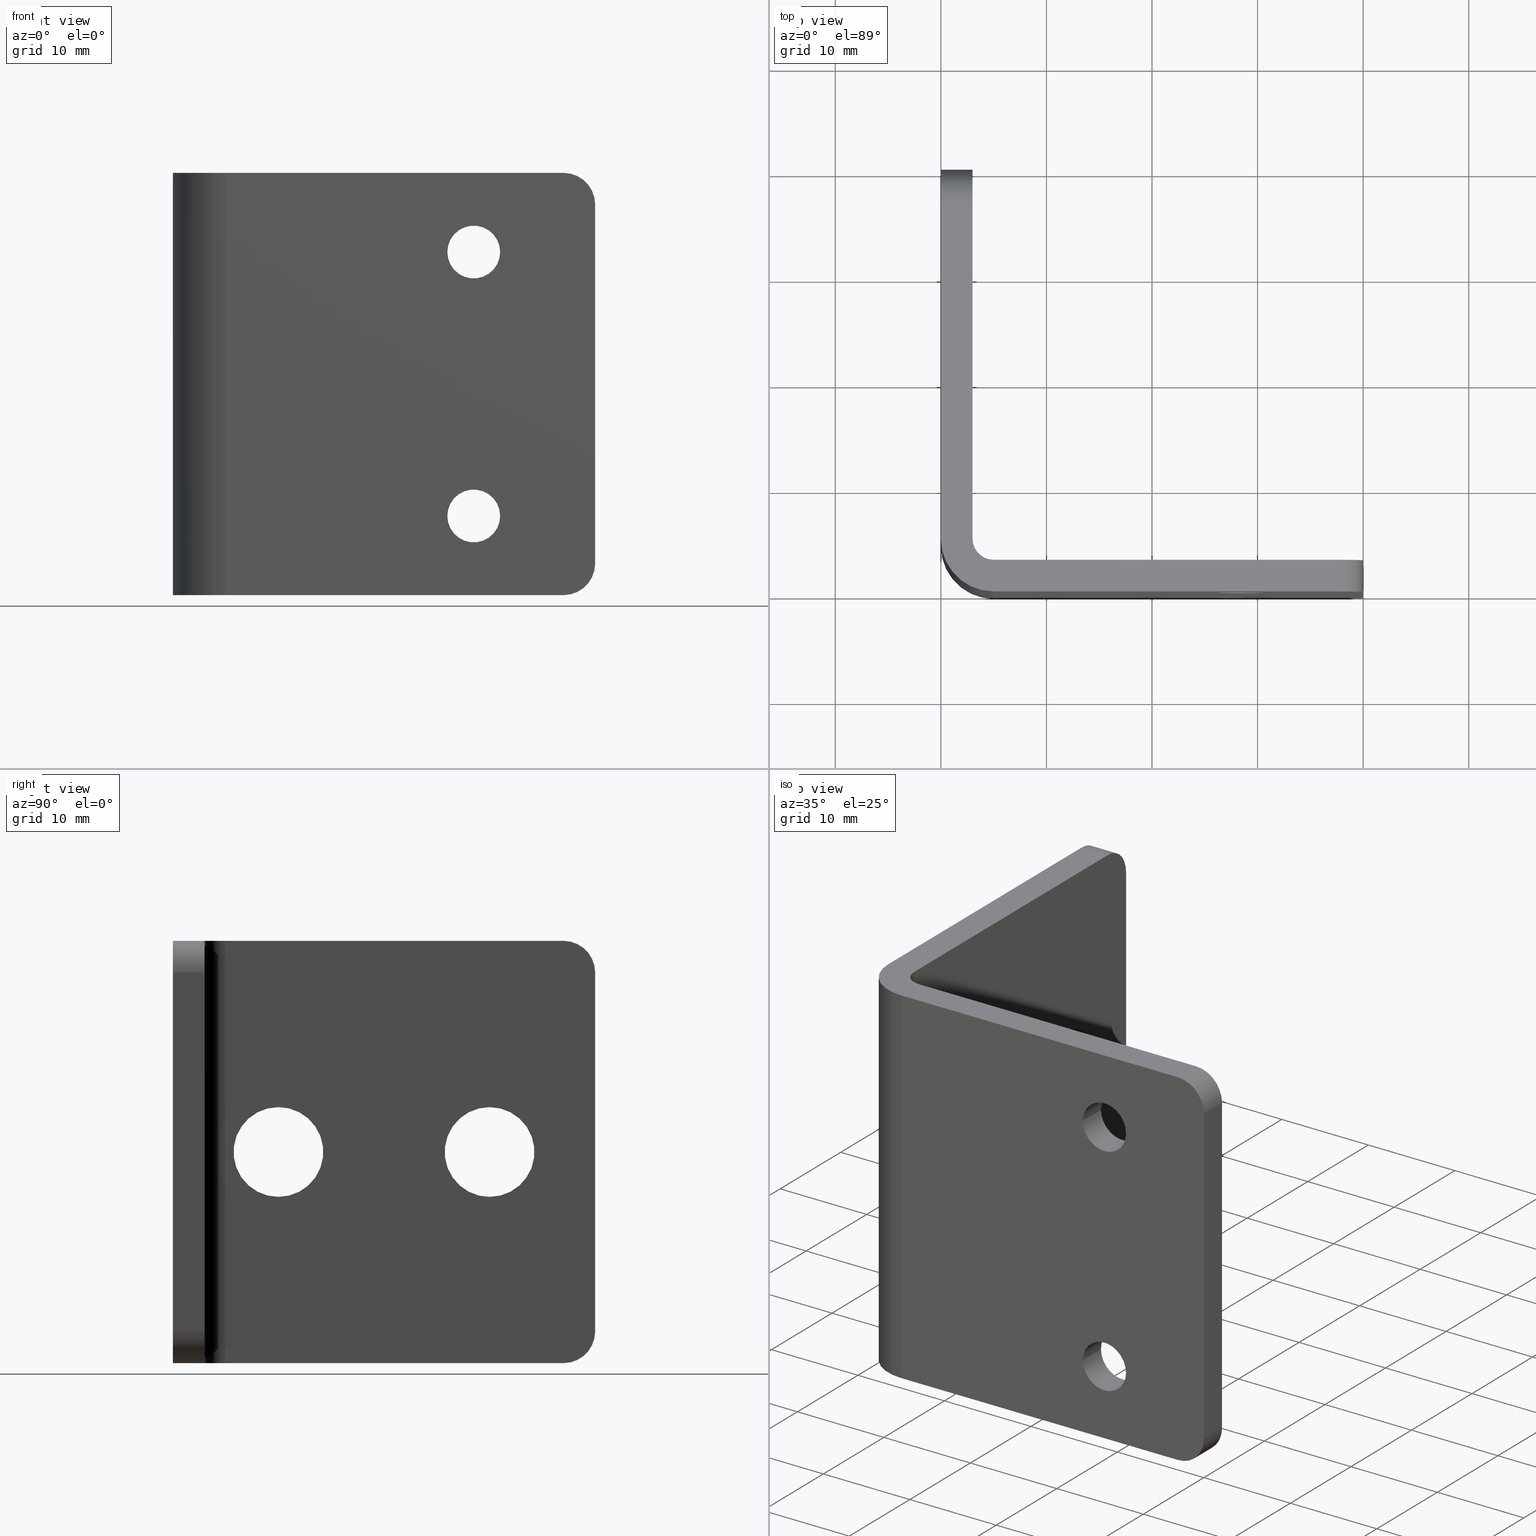
[diagram: canonical four-view strip — front | top / right | iso, engineering-drawing reading convention]
A machine part, canonical four-view strip (front | top / right | iso — engineering-drawing reading convention). The complete STEP part file that produces these views, byte-faithful:
ISO-10303-21;
HEADER;
/* Generated by software containing ST-Developer
 * from STEP Tools, Inc. (www.steptools.com) 
 */

FILE_DESCRIPTION(
/* description */ ('ANGOLARE 40X40X40X3 PER FIX SCORREV.INOX'),
/* implementation_level */ '2;1');

FILE_NAME(
/* name */ 
'C:\\Users\\tecnico7\\Desktop\\NUOVI DISEGNI 3D\\DANXX0000053.stp',
/* time_stamp */ '2022-11-21T11:14:09+01:00',
/* author */ ('tecnico7'),
/* organization */ (''),
/* preprocessor_version */ 'ST-DEVELOPER v18.1',
/* originating_system */ 'Autodesk Inventor 2022',
/* authorisation */ '');

FILE_SCHEMA (('AUTOMOTIVE_DESIGN { 1 0 10303 214 3 1 1 }'));
ENDSEC;

DATA;
#10=MECHANICAL_DESIGN_GEOMETRIC_PRESENTATION_REPRESENTATION('',(#13),#684);
#11=SHAPE_REPRESENTATION_RELATIONSHIP('SRR','None',#691,#12);
#12=ADVANCED_BREP_SHAPE_REPRESENTATION('',(#14),#683);
#13=STYLED_ITEM('',(#700),#14);
#14=MANIFOLD_SOLID_BREP('Solido2',#391);
#15=FACE_BOUND('',#60,.T.);
#16=FACE_BOUND('',#61,.T.);
#17=FACE_BOUND('',#67,.T.);
#18=FACE_BOUND('',#68,.T.);
#19=FACE_BOUND('',#80,.T.);
#20=FACE_BOUND('',#81,.T.);
#21=FACE_BOUND('',#85,.T.);
#22=FACE_BOUND('',#86,.T.);
#23=PLANE('',#417);
#24=PLANE('',#418);
#25=PLANE('',#424);
#26=PLANE('',#428);
#27=PLANE('',#429);
#28=PLANE('',#435);
#29=PLANE('',#447);
#30=PLANE('',#449);
#31=PLANE('',#451);
#32=PLANE('',#452);
#33=PLANE('',#454);
#34=PLANE('',#455);
#35=FACE_OUTER_BOUND('',#57,.T.);
#36=FACE_OUTER_BOUND('',#58,.T.);
#37=FACE_OUTER_BOUND('',#59,.T.);
#38=FACE_OUTER_BOUND('',#62,.T.);
#39=FACE_OUTER_BOUND('',#63,.T.);
#40=FACE_OUTER_BOUND('',#64,.T.);
#41=FACE_OUTER_BOUND('',#65,.T.);
#42=FACE_OUTER_BOUND('',#66,.T.);
#43=FACE_OUTER_BOUND('',#69,.T.);
#44=FACE_OUTER_BOUND('',#70,.T.);
#45=FACE_OUTER_BOUND('',#71,.T.);
#46=FACE_OUTER_BOUND('',#72,.T.);
#47=FACE_OUTER_BOUND('',#73,.T.);
#48=FACE_OUTER_BOUND('',#74,.T.);
#49=FACE_OUTER_BOUND('',#75,.T.);
#50=FACE_OUTER_BOUND('',#76,.T.);
#51=FACE_OUTER_BOUND('',#77,.T.);
#52=FACE_OUTER_BOUND('',#78,.T.);
#53=FACE_OUTER_BOUND('',#79,.T.);
#54=FACE_OUTER_BOUND('',#82,.T.);
#55=FACE_OUTER_BOUND('',#83,.T.);
#56=FACE_OUTER_BOUND('',#84,.T.);
#57=EDGE_LOOP('',(#255,#256,#257,#258));
#58=EDGE_LOOP('',(#259,#260,#261,#262));
#59=EDGE_LOOP('',(#263,#264,#265,#266,#267,#268));
#60=EDGE_LOOP('',(#269));
#61=EDGE_LOOP('',(#270));
#62=EDGE_LOOP('',(#271,#272,#273,#274));
#63=EDGE_LOOP('',(#275,#276,#277,#278));
#64=EDGE_LOOP('',(#279,#280,#281,#282));
#65=EDGE_LOOP('',(#283,#284,#285,#286));
#66=EDGE_LOOP('',(#287,#288,#289,#290,#291,#292));
#67=EDGE_LOOP('',(#293));
#68=EDGE_LOOP('',(#294));
#69=EDGE_LOOP('',(#295,#296,#297,#298));
#70=EDGE_LOOP('',(#299,#300,#301,#302));
#71=EDGE_LOOP('',(#303,#304,#305,#306));
#72=EDGE_LOOP('',(#307,#308,#309,#310));
#73=EDGE_LOOP('',(#311,#312,#313,#314));
#74=EDGE_LOOP('',(#315,#316,#317,#318));
#75=EDGE_LOOP('',(#319,#320,#321,#322));
#76=EDGE_LOOP('',(#323,#324,#325,#326));
#77=EDGE_LOOP('',(#327,#328,#329,#330));
#78=EDGE_LOOP('',(#331,#332,#333,#334));
#79=EDGE_LOOP('',(#335,#336,#337,#338,#339,#340));
#80=EDGE_LOOP('',(#341));
#81=EDGE_LOOP('',(#342));
#82=EDGE_LOOP('',(#343,#344,#345,#346));
#83=EDGE_LOOP('',(#347,#348,#349,#350));
#84=EDGE_LOOP('',(#351,#352,#353,#354,#355,#356));
#85=EDGE_LOOP('',(#357));
#86=EDGE_LOOP('',(#358));
#87=LINE('',#580,#119);
#88=LINE('',#583,#120);
#89=LINE('',#586,#121);
#90=LINE('',#588,#122);
#91=LINE('',#589,#123);
#92=LINE('',#592,#124);
#93=LINE('',#596,#125);
#94=LINE('',#597,#126);
#95=LINE('',#606,#127);
#96=LINE('',#607,#128);
#97=LINE('',#610,#129);
#98=LINE('',#611,#130);
#99=LINE('',#617,#131);
#100=LINE('',#620,#132);
#101=LINE('',#623,#133);
#102=LINE('',#625,#134);
#103=LINE('',#626,#135);
#104=LINE('',#629,#136);
#105=LINE('',#633,#137);
#106=LINE('',#634,#138);
#107=LINE('',#643,#139);
#108=LINE('',#644,#140);
#109=LINE('',#647,#141);
#110=LINE('',#648,#142);
#111=LINE('',#651,#143);
#112=LINE('',#655,#144);
#113=LINE('',#660,#145);
#114=LINE('',#664,#146);
#115=LINE('',#666,#147);
#116=LINE('',#674,#148);
#117=LINE('',#677,#149);
#118=LINE('',#679,#150);
#119=VECTOR('',#462,10.);
#120=VECTOR('',#465,10.);
#121=VECTOR('',#468,10.);
#122=VECTOR('',#469,10.);
#123=VECTOR('',#470,10.);
#124=VECTOR('',#473,10.);
#125=VECTOR('',#476,10.);
#126=VECTOR('',#477,10.);
#127=VECTOR('',#486,10.);
#128=VECTOR('',#487,10.);
#129=VECTOR('',#490,10.);
#130=VECTOR('',#491,10.);
#131=VECTOR('',#496,10.);
#132=VECTOR('',#499,10.);
#133=VECTOR('',#502,10.);
#134=VECTOR('',#503,10.);
#135=VECTOR('',#504,10.);
#136=VECTOR('',#507,10.);
#137=VECTOR('',#510,10.);
#138=VECTOR('',#511,10.);
#139=VECTOR('',#520,10.);
#140=VECTOR('',#521,10.);
#141=VECTOR('',#524,10.);
#142=VECTOR('',#525,10.);
#143=VECTOR('',#528,4.25);
#144=VECTOR('',#533,4.25);
#145=VECTOR('',#540,2.5);
#146=VECTOR('',#545,2.5);
#147=VECTOR('',#548,10.);
#148=VECTOR('',#563,10.);
#149=VECTOR('',#568,10.);
#150=VECTOR('',#571,10.);
#151=CIRCLE('',#415,3.);
#152=CIRCLE('',#416,3.);
#153=CIRCLE('',#419,3.);
#154=CIRCLE('',#420,2.5);
#155=CIRCLE('',#421,2.5);
#156=CIRCLE('',#423,3.);
#157=CIRCLE('',#426,3.);
#158=CIRCLE('',#427,3.);
#159=CIRCLE('',#430,3.);
#160=CIRCLE('',#431,4.25);
#161=CIRCLE('',#432,4.25);
#162=CIRCLE('',#434,3.);
#163=CIRCLE('',#437,4.25);
#164=CIRCLE('',#439,4.25);
#165=CIRCLE('',#441,2.5);
#166=CIRCLE('',#443,2.5);
#167=CIRCLE('',#445,5.);
#168=CIRCLE('',#446,5.);
#169=CIRCLE('',#448,2.);
#170=CIRCLE('',#450,2.);
#171=VERTEX_POINT('',#576);
#172=VERTEX_POINT('',#577);
#173=VERTEX_POINT('',#579);
#174=VERTEX_POINT('',#581);
#175=VERTEX_POINT('',#585);
#176=VERTEX_POINT('',#587);
#177=VERTEX_POINT('',#591);
#178=VERTEX_POINT('',#593);
#179=VERTEX_POINT('',#595);
#180=VERTEX_POINT('',#598);
#181=VERTEX_POINT('',#600);
#182=VERTEX_POINT('',#603);
#183=VERTEX_POINT('',#604);
#184=VERTEX_POINT('',#609);
#185=VERTEX_POINT('',#613);
#186=VERTEX_POINT('',#614);
#187=VERTEX_POINT('',#616);
#188=VERTEX_POINT('',#618);
#189=VERTEX_POINT('',#622);
#190=VERTEX_POINT('',#624);
#191=VERTEX_POINT('',#628);
#192=VERTEX_POINT('',#630);
#193=VERTEX_POINT('',#632);
#194=VERTEX_POINT('',#635);
#195=VERTEX_POINT('',#637);
#196=VERTEX_POINT('',#640);
#197=VERTEX_POINT('',#641);
#198=VERTEX_POINT('',#646);
#199=VERTEX_POINT('',#650);
#200=VERTEX_POINT('',#654);
#201=VERTEX_POINT('',#658);
#202=VERTEX_POINT('',#662);
#203=EDGE_CURVE('',#171,#172,#151,.T.);
#204=EDGE_CURVE('',#172,#173,#87,.T.);
#205=EDGE_CURVE('',#173,#174,#152,.T.);
#206=EDGE_CURVE('',#174,#171,#88,.T.);
#207=EDGE_CURVE('',#175,#174,#89,.T.);
#208=EDGE_CURVE('',#175,#176,#90,.T.);
#209=EDGE_CURVE('',#176,#171,#91,.T.);
#210=EDGE_CURVE('',#173,#177,#92,.T.);
#211=EDGE_CURVE('',#178,#177,#153,.T.);
#212=EDGE_CURVE('',#178,#179,#93,.T.);
#213=EDGE_CURVE('',#179,#175,#94,.T.);
#214=EDGE_CURVE('',#180,#180,#154,.T.);
#215=EDGE_CURVE('',#181,#181,#155,.T.);
#216=EDGE_CURVE('',#182,#183,#156,.T.);
#217=EDGE_CURVE('',#183,#178,#95,.T.);
#218=EDGE_CURVE('',#177,#182,#96,.T.);
#219=EDGE_CURVE('',#183,#184,#97,.T.);
#220=EDGE_CURVE('',#184,#179,#98,.T.);
#221=EDGE_CURVE('',#185,#186,#157,.T.);
#222=EDGE_CURVE('',#186,#187,#99,.T.);
#223=EDGE_CURVE('',#187,#188,#158,.T.);
#224=EDGE_CURVE('',#188,#185,#100,.T.);
#225=EDGE_CURVE('',#189,#188,#101,.T.);
#226=EDGE_CURVE('',#189,#190,#102,.T.);
#227=EDGE_CURVE('',#190,#185,#103,.T.);
#228=EDGE_CURVE('',#187,#191,#104,.T.);
#229=EDGE_CURVE('',#192,#191,#159,.T.);
#230=EDGE_CURVE('',#193,#192,#105,.T.);
#231=EDGE_CURVE('',#193,#189,#106,.T.);
#232=EDGE_CURVE('',#194,#194,#160,.T.);
#233=EDGE_CURVE('',#195,#195,#161,.T.);
#234=EDGE_CURVE('',#196,#197,#162,.T.);
#235=EDGE_CURVE('',#197,#192,#107,.T.);
#236=EDGE_CURVE('',#191,#196,#108,.T.);
#237=EDGE_CURVE('',#197,#198,#109,.T.);
#238=EDGE_CURVE('',#198,#193,#110,.T.);
#239=EDGE_CURVE('',#194,#199,#111,.T.);
#240=EDGE_CURVE('',#199,#199,#163,.T.);
#241=EDGE_CURVE('',#195,#200,#112,.T.);
#242=EDGE_CURVE('',#200,#200,#164,.T.);
#243=EDGE_CURVE('',#201,#201,#165,.T.);
#244=EDGE_CURVE('',#201,#180,#113,.T.);
#245=EDGE_CURVE('',#202,#202,#166,.T.);
#246=EDGE_CURVE('',#202,#181,#114,.T.);
#247=EDGE_CURVE('',#190,#198,#115,.T.);
#248=EDGE_CURVE('',#175,#190,#167,.T.);
#249=EDGE_CURVE('',#198,#179,#168,.T.);
#250=EDGE_CURVE('',#176,#189,#169,.T.);
#251=EDGE_CURVE('',#184,#193,#170,.T.);
#252=EDGE_CURVE('',#186,#196,#116,.T.);
#253=EDGE_CURVE('',#176,#184,#117,.T.);
#254=EDGE_CURVE('',#172,#182,#118,.T.);
#255=ORIENTED_EDGE('',*,*,#203,.T.);
#256=ORIENTED_EDGE('',*,*,#204,.T.);
#257=ORIENTED_EDGE('',*,*,#205,.T.);
#258=ORIENTED_EDGE('',*,*,#206,.T.);
#259=ORIENTED_EDGE('',*,*,#206,.F.);
#260=ORIENTED_EDGE('',*,*,#207,.F.);
#261=ORIENTED_EDGE('',*,*,#208,.T.);
#262=ORIENTED_EDGE('',*,*,#209,.T.);
#263=ORIENTED_EDGE('',*,*,#205,.F.);
#264=ORIENTED_EDGE('',*,*,#210,.T.);
#265=ORIENTED_EDGE('',*,*,#211,.F.);
#266=ORIENTED_EDGE('',*,*,#212,.T.);
#267=ORIENTED_EDGE('',*,*,#213,.T.);
#268=ORIENTED_EDGE('',*,*,#207,.T.);
#269=ORIENTED_EDGE('',*,*,#214,.T.);
#270=ORIENTED_EDGE('',*,*,#215,.T.);
#271=ORIENTED_EDGE('',*,*,#216,.T.);
#272=ORIENTED_EDGE('',*,*,#217,.T.);
#273=ORIENTED_EDGE('',*,*,#211,.T.);
#274=ORIENTED_EDGE('',*,*,#218,.T.);
#275=ORIENTED_EDGE('',*,*,#217,.F.);
#276=ORIENTED_EDGE('',*,*,#219,.T.);
#277=ORIENTED_EDGE('',*,*,#220,.T.);
#278=ORIENTED_EDGE('',*,*,#212,.F.);
#279=ORIENTED_EDGE('',*,*,#221,.T.);
#280=ORIENTED_EDGE('',*,*,#222,.T.);
#281=ORIENTED_EDGE('',*,*,#223,.T.);
#282=ORIENTED_EDGE('',*,*,#224,.T.);
#283=ORIENTED_EDGE('',*,*,#224,.F.);
#284=ORIENTED_EDGE('',*,*,#225,.F.);
#285=ORIENTED_EDGE('',*,*,#226,.T.);
#286=ORIENTED_EDGE('',*,*,#227,.T.);
#287=ORIENTED_EDGE('',*,*,#223,.F.);
#288=ORIENTED_EDGE('',*,*,#228,.T.);
#289=ORIENTED_EDGE('',*,*,#229,.F.);
#290=ORIENTED_EDGE('',*,*,#230,.F.);
#291=ORIENTED_EDGE('',*,*,#231,.T.);
#292=ORIENTED_EDGE('',*,*,#225,.T.);
#293=ORIENTED_EDGE('',*,*,#232,.T.);
#294=ORIENTED_EDGE('',*,*,#233,.T.);
#295=ORIENTED_EDGE('',*,*,#234,.T.);
#296=ORIENTED_EDGE('',*,*,#235,.T.);
#297=ORIENTED_EDGE('',*,*,#229,.T.);
#298=ORIENTED_EDGE('',*,*,#236,.T.);
#299=ORIENTED_EDGE('',*,*,#235,.F.);
#300=ORIENTED_EDGE('',*,*,#237,.T.);
#301=ORIENTED_EDGE('',*,*,#238,.T.);
#302=ORIENTED_EDGE('',*,*,#230,.T.);
#303=ORIENTED_EDGE('',*,*,#232,.F.);
#304=ORIENTED_EDGE('',*,*,#239,.T.);
#305=ORIENTED_EDGE('',*,*,#240,.F.);
#306=ORIENTED_EDGE('',*,*,#239,.F.);
#307=ORIENTED_EDGE('',*,*,#233,.F.);
#308=ORIENTED_EDGE('',*,*,#241,.T.);
#309=ORIENTED_EDGE('',*,*,#242,.F.);
#310=ORIENTED_EDGE('',*,*,#241,.F.);
#311=ORIENTED_EDGE('',*,*,#243,.F.);
#312=ORIENTED_EDGE('',*,*,#244,.T.);
#313=ORIENTED_EDGE('',*,*,#214,.F.);
#314=ORIENTED_EDGE('',*,*,#244,.F.);
#315=ORIENTED_EDGE('',*,*,#245,.F.);
#316=ORIENTED_EDGE('',*,*,#246,.T.);
#317=ORIENTED_EDGE('',*,*,#215,.F.);
#318=ORIENTED_EDGE('',*,*,#246,.F.);
#319=ORIENTED_EDGE('',*,*,#247,.F.);
#320=ORIENTED_EDGE('',*,*,#248,.F.);
#321=ORIENTED_EDGE('',*,*,#213,.F.);
#322=ORIENTED_EDGE('',*,*,#249,.F.);
#323=ORIENTED_EDGE('',*,*,#226,.F.);
#324=ORIENTED_EDGE('',*,*,#250,.F.);
#325=ORIENTED_EDGE('',*,*,#208,.F.);
#326=ORIENTED_EDGE('',*,*,#248,.T.);
#327=ORIENTED_EDGE('',*,*,#238,.F.);
#328=ORIENTED_EDGE('',*,*,#249,.T.);
#329=ORIENTED_EDGE('',*,*,#220,.F.);
#330=ORIENTED_EDGE('',*,*,#251,.T.);
#331=ORIENTED_EDGE('',*,*,#222,.F.);
#332=ORIENTED_EDGE('',*,*,#252,.T.);
#333=ORIENTED_EDGE('',*,*,#236,.F.);
#334=ORIENTED_EDGE('',*,*,#228,.F.);
#335=ORIENTED_EDGE('',*,*,#221,.F.);
#336=ORIENTED_EDGE('',*,*,#227,.F.);
#337=ORIENTED_EDGE('',*,*,#247,.T.);
#338=ORIENTED_EDGE('',*,*,#237,.F.);
#339=ORIENTED_EDGE('',*,*,#234,.F.);
#340=ORIENTED_EDGE('',*,*,#252,.F.);
#341=ORIENTED_EDGE('',*,*,#240,.T.);
#342=ORIENTED_EDGE('',*,*,#242,.T.);
#343=ORIENTED_EDGE('',*,*,#231,.F.);
#344=ORIENTED_EDGE('',*,*,#251,.F.);
#345=ORIENTED_EDGE('',*,*,#253,.F.);
#346=ORIENTED_EDGE('',*,*,#250,.T.);
#347=ORIENTED_EDGE('',*,*,#204,.F.);
#348=ORIENTED_EDGE('',*,*,#254,.T.);
#349=ORIENTED_EDGE('',*,*,#218,.F.);
#350=ORIENTED_EDGE('',*,*,#210,.F.);
#351=ORIENTED_EDGE('',*,*,#203,.F.);
#352=ORIENTED_EDGE('',*,*,#209,.F.);
#353=ORIENTED_EDGE('',*,*,#253,.T.);
#354=ORIENTED_EDGE('',*,*,#219,.F.);
#355=ORIENTED_EDGE('',*,*,#216,.F.);
#356=ORIENTED_EDGE('',*,*,#254,.F.);
#357=ORIENTED_EDGE('',*,*,#243,.T.);
#358=ORIENTED_EDGE('',*,*,#245,.T.);
#359=CYLINDRICAL_SURFACE('',#414,3.);
#360=CYLINDRICAL_SURFACE('',#422,3.);
#361=CYLINDRICAL_SURFACE('',#425,3.);
#362=CYLINDRICAL_SURFACE('',#433,3.);
#363=CYLINDRICAL_SURFACE('',#436,4.25);
#364=CYLINDRICAL_SURFACE('',#438,4.25);
#365=CYLINDRICAL_SURFACE('',#440,2.5);
#366=CYLINDRICAL_SURFACE('',#442,2.5);
#367=CYLINDRICAL_SURFACE('',#444,5.);
#368=CYLINDRICAL_SURFACE('',#453,2.);
#369=ADVANCED_FACE('',(#35),#359,.T.);
#370=ADVANCED_FACE('',(#36),#23,.T.);
#371=ADVANCED_FACE('',(#37,#15,#16),#24,.F.);
#372=ADVANCED_FACE('',(#38),#360,.T.);
#373=ADVANCED_FACE('',(#39),#25,.T.);
#374=ADVANCED_FACE('',(#40),#361,.T.);
#375=ADVANCED_FACE('',(#41),#26,.T.);
#376=ADVANCED_FACE('',(#42,#17,#18),#27,.T.);
#377=ADVANCED_FACE('',(#43),#362,.T.);
#378=ADVANCED_FACE('',(#44),#28,.T.);
#379=ADVANCED_FACE('',(#45),#363,.F.);
#380=ADVANCED_FACE('',(#46),#364,.F.);
#381=ADVANCED_FACE('',(#47),#365,.F.);
#382=ADVANCED_FACE('',(#48),#366,.F.);
#383=ADVANCED_FACE('',(#49),#367,.T.);
#384=ADVANCED_FACE('',(#50),#29,.T.);
#385=ADVANCED_FACE('',(#51),#30,.T.);
#386=ADVANCED_FACE('',(#52),#31,.T.);
#387=ADVANCED_FACE('',(#53,#19,#20),#32,.F.);
#388=ADVANCED_FACE('',(#54),#368,.F.);
#389=ADVANCED_FACE('',(#55),#33,.T.);
#390=ADVANCED_FACE('',(#56,#21,#22),#34,.T.);
#391=CLOSED_SHELL('',(#369,#370,#371,#372,#373,#374,#375,#376,#377,#378,
#379,#380,#381,#382,#383,#384,#385,#386,#387,#388,#389,#390));
#392=DERIVED_UNIT_ELEMENT(#395,1.);
#393=DERIVED_UNIT_ELEMENT(#686,-3.);
#394=DIMENSIONAL_EXPONENTS(1.,0.,0.,0.,0.,0.,0.);
#395=(
CONVERSION_BASED_UNIT('gram',#397)
MASS_UNIT()
NAMED_UNIT(#394)
);
#396=(
MASS_UNIT()
NAMED_UNIT(*)
SI_UNIT(.KILO.,.GRAM.)
);
#397=MASS_MEASURE_WITH_UNIT(MASS_MEASURE(0.001),#396);
#398=DERIVED_UNIT((#392,#393));
#399=MEASURE_REPRESENTATION_ITEM('density measure',
POSITIVE_RATIO_MEASURE(8.08),#398);
#400=PROPERTY_DEFINITION_REPRESENTATION(#405,#402);
#401=PROPERTY_DEFINITION_REPRESENTATION(#406,#403);
#402=REPRESENTATION('material name',(#404),#683);
#403=REPRESENTATION('density',(#399),#683);
#404=DESCRIPTIVE_REPRESENTATION_ITEM('Acciaio Inox AISI304',
'Acciaio Inox AISI304');
#405=PROPERTY_DEFINITION('material property','material name',#693);
#406=PROPERTY_DEFINITION('material property','density of part',#693);
#407=DATE_TIME_ROLE('creation_date');
#408=APPLIED_DATE_AND_TIME_ASSIGNMENT(#409,#407,(#693));
#409=DATE_AND_TIME(#410,#411);
#410=CALENDAR_DATE(2022,21,2);
#411=LOCAL_TIME(0,0,0.,#412);
#412=COORDINATED_UNIVERSAL_TIME_OFFSET(0,0,.BEHIND.);
#413=AXIS2_PLACEMENT_3D('placement',#574,#456,#457);
#414=AXIS2_PLACEMENT_3D('',#575,#458,#459);
#415=AXIS2_PLACEMENT_3D('',#578,#460,#461);
#416=AXIS2_PLACEMENT_3D('',#582,#463,#464);
#417=AXIS2_PLACEMENT_3D('',#584,#466,#467);
#418=AXIS2_PLACEMENT_3D('',#590,#471,#472);
#419=AXIS2_PLACEMENT_3D('',#594,#474,#475);
#420=AXIS2_PLACEMENT_3D('',#599,#478,#479);
#421=AXIS2_PLACEMENT_3D('',#601,#480,#481);
#422=AXIS2_PLACEMENT_3D('',#602,#482,#483);
#423=AXIS2_PLACEMENT_3D('',#605,#484,#485);
#424=AXIS2_PLACEMENT_3D('',#608,#488,#489);
#425=AXIS2_PLACEMENT_3D('',#612,#492,#493);
#426=AXIS2_PLACEMENT_3D('',#615,#494,#495);
#427=AXIS2_PLACEMENT_3D('',#619,#497,#498);
#428=AXIS2_PLACEMENT_3D('',#621,#500,#501);
#429=AXIS2_PLACEMENT_3D('',#627,#505,#506);
#430=AXIS2_PLACEMENT_3D('',#631,#508,#509);
#431=AXIS2_PLACEMENT_3D('',#636,#512,#513);
#432=AXIS2_PLACEMENT_3D('',#638,#514,#515);
#433=AXIS2_PLACEMENT_3D('',#639,#516,#517);
#434=AXIS2_PLACEMENT_3D('',#642,#518,#519);
#435=AXIS2_PLACEMENT_3D('',#645,#522,#523);
#436=AXIS2_PLACEMENT_3D('',#649,#526,#527);
#437=AXIS2_PLACEMENT_3D('',#652,#529,#530);
#438=AXIS2_PLACEMENT_3D('',#653,#531,#532);
#439=AXIS2_PLACEMENT_3D('',#656,#534,#535);
#440=AXIS2_PLACEMENT_3D('',#657,#536,#537);
#441=AXIS2_PLACEMENT_3D('',#659,#538,#539);
#442=AXIS2_PLACEMENT_3D('',#661,#541,#542);
#443=AXIS2_PLACEMENT_3D('',#663,#543,#544);
#444=AXIS2_PLACEMENT_3D('',#665,#546,#547);
#445=AXIS2_PLACEMENT_3D('',#667,#549,#550);
#446=AXIS2_PLACEMENT_3D('',#668,#551,#552);
#447=AXIS2_PLACEMENT_3D('',#669,#553,#554);
#448=AXIS2_PLACEMENT_3D('',#670,#555,#556);
#449=AXIS2_PLACEMENT_3D('',#671,#557,#558);
#450=AXIS2_PLACEMENT_3D('',#672,#559,#560);
#451=AXIS2_PLACEMENT_3D('',#673,#561,#562);
#452=AXIS2_PLACEMENT_3D('',#675,#564,#565);
#453=AXIS2_PLACEMENT_3D('',#676,#566,#567);
#454=AXIS2_PLACEMENT_3D('',#678,#569,#570);
#455=AXIS2_PLACEMENT_3D('',#680,#572,#573);
#456=DIRECTION('axis',(0.,0.,1.));
#457=DIRECTION('refdir',(1.,0.,0.));
#458=DIRECTION('center_axis',(0.,1.,0.));
#459=DIRECTION('ref_axis',(0.707106781186548,0.,-0.707106781186547));
#460=DIRECTION('center_axis',(0.,-1.,0.));
#461=DIRECTION('ref_axis',(0.707106781186548,0.,-0.707106781186547));
#462=DIRECTION('',(0.,-1.,0.));
#463=DIRECTION('center_axis',(0.,1.,0.));
#464=DIRECTION('ref_axis',(0.707106781186548,0.,-0.707106781186547));
#465=DIRECTION('',(0.,1.,0.));
#466=DIRECTION('center_axis',(0.,0.,-1.));
#467=DIRECTION('ref_axis',(-1.,0.,0.));
#468=DIRECTION('',(1.,0.,0.));
#469=DIRECTION('',(0.,1.,0.));
#470=DIRECTION('',(1.,0.,0.));
#471=DIRECTION('center_axis',(0.,1.,0.));
#472=DIRECTION('ref_axis',(0.,0.,1.));
#473=DIRECTION('',(5.55111512312578E-16,0.,1.));
#474=DIRECTION('center_axis',(0.,1.,0.));
#475=DIRECTION('ref_axis',(0.707106781186547,0.,0.707106781186547));
#476=DIRECTION('',(-1.,0.,1.11022302462516E-16));
#477=DIRECTION('',(-1.66533453693774E-16,0.,-1.));
#478=DIRECTION('center_axis',(0.,1.,0.));
#479=DIRECTION('ref_axis',(1.,0.,0.));
#480=DIRECTION('center_axis',(0.,1.,0.));
#481=DIRECTION('ref_axis',(1.,0.,0.));
#482=DIRECTION('center_axis',(0.,1.,0.));
#483=DIRECTION('ref_axis',(0.707106781186547,0.,0.707106781186547));
#484=DIRECTION('center_axis',(0.,-1.,0.));
#485=DIRECTION('ref_axis',(0.707106781186547,0.,0.707106781186547));
#486=DIRECTION('',(0.,-1.,0.));
#487=DIRECTION('',(0.,1.,0.));
#488=DIRECTION('center_axis',(1.11022302462516E-16,0.,1.));
#489=DIRECTION('ref_axis',(1.,0.,-1.11022302462516E-16));
#490=DIRECTION('',(-1.,0.,1.11022302462516E-16));
#491=DIRECTION('',(0.,-1.,0.));
#492=DIRECTION('center_axis',(-1.,-6.12323399573677E-17,1.66533453693773E-16));
#493=DIRECTION('ref_axis',(0.,0.707106781186547,-0.707106781186547));
#494=DIRECTION('center_axis',(1.,5.0040624786809E-17,-1.66533453693773E-16));
#495=DIRECTION('ref_axis',(0.,0.707106781186547,-0.707106781186547));
#496=DIRECTION('',(1.,6.12323399573677E-17,-1.66533453693773E-16));
#497=DIRECTION('center_axis',(-1.,-5.00406247868089E-17,1.66533453693773E-16));
#498=DIRECTION('ref_axis',(0.,0.707106781186547,-0.707106781186547));
#499=DIRECTION('',(-1.,-6.12323399573677E-17,1.66533453693773E-16));
#500=DIRECTION('center_axis',(-1.66533453693773E-16,0.,-1.));
#501=DIRECTION('ref_axis',(-6.12323399573677E-17,1.,0.));
#502=DIRECTION('',(4.52119264905414E-17,1.,1.11079774368113E-15));
#503=DIRECTION('',(-1.,-6.12323399573677E-17,1.66533453693773E-16));
#504=DIRECTION('',(-6.12323399573677E-17,1.,0.));
#505=DIRECTION('center_axis',(1.,5.00406247868089E-17,-1.66533453693773E-16));
#506=DIRECTION('ref_axis',(1.66533453693773E-16,1.66533453693773E-16,1.));
#507=DIRECTION('',(1.66533453693774E-16,-1.66533453693773E-16,1.));
#508=DIRECTION('center_axis',(-1.,-5.00406247868089E-17,1.66533453693773E-16));
#509=DIRECTION('ref_axis',(0.,0.707106781186549,0.707106781186546));
#510=DIRECTION('',(4.52119264905414E-17,1.,6.85020677889498E-16));
#511=DIRECTION('',(-1.66533453693774E-16,0.,-1.));
#512=DIRECTION('center_axis',(-1.,-5.00406247868089E-17,1.66533453693773E-16));
#513=DIRECTION('ref_axis',(-1.66533453693774E-16,1.23359664272335E-48,-1.));
#514=DIRECTION('center_axis',(-1.,-5.00406247868089E-17,1.66533453693773E-16));
#515=DIRECTION('ref_axis',(-1.66533453693774E-16,1.23359664272335E-48,-1.));
#516=DIRECTION('center_axis',(-1.,-6.12323399573677E-17,1.66533453693773E-16));
#517=DIRECTION('ref_axis',(0.,0.707106781186549,0.707106781186546));
#518=DIRECTION('center_axis',(1.,5.0040624786809E-17,-1.66533453693773E-16));
#519=DIRECTION('ref_axis',(0.,0.707106781186549,0.707106781186546));
#520=DIRECTION('',(1.,6.12323399573677E-17,-1.66533453693773E-16));
#521=DIRECTION('',(-1.,-6.12323399573677E-17,1.66533453693773E-16));
#522=DIRECTION('center_axis',(1.66533453693774E-16,-6.85020677889498E-16,
1.));
#523=DIRECTION('ref_axis',(6.12323399573675E-17,-1.,-6.85020677889498E-16));
#524=DIRECTION('',(-4.52119264905414E-17,-1.,-6.85020677889498E-16));
#525=DIRECTION('',(1.,6.12323399573677E-17,-1.66533453693773E-16));
#526=DIRECTION('center_axis',(1.,5.00406247868089E-17,-1.66533453693773E-16));
#527=DIRECTION('ref_axis',(-1.66533453693774E-16,1.23359664272335E-48,-1.));
#528=DIRECTION('',(-1.,-5.00406247868089E-17,1.66533453693774E-16));
#529=DIRECTION('center_axis',(1.,5.0040624786809E-17,-1.66533453693773E-16));
#530=DIRECTION('ref_axis',(-1.66533453693774E-16,1.23359664272335E-48,-1.));
#531=DIRECTION('center_axis',(1.,5.00406247868089E-17,-1.66533453693773E-16));
#532=DIRECTION('ref_axis',(-1.66533453693774E-16,1.23359664272335E-48,-1.));
#533=DIRECTION('',(-1.,-5.00406247868089E-17,1.66533453693774E-16));
#534=DIRECTION('center_axis',(1.,5.0040624786809E-17,-1.66533453693773E-16));
#535=DIRECTION('ref_axis',(-1.66533453693774E-16,1.23359664272335E-48,-1.));
#536=DIRECTION('center_axis',(0.,1.,0.));
#537=DIRECTION('ref_axis',(1.,0.,0.));
#538=DIRECTION('center_axis',(0.,-1.,0.));
#539=DIRECTION('ref_axis',(1.,0.,0.));
#540=DIRECTION('',(0.,-1.,0.));
#541=DIRECTION('center_axis',(0.,1.,0.));
#542=DIRECTION('ref_axis',(1.,0.,0.));
#543=DIRECTION('center_axis',(0.,-1.,0.));
#544=DIRECTION('ref_axis',(1.,0.,0.));
#545=DIRECTION('',(0.,-1.,0.));
#546=DIRECTION('center_axis',(-1.66533453693773E-16,0.,-1.));
#547=DIRECTION('ref_axis',(0.,-1.,0.));
#548=DIRECTION('',(1.66533453693774E-16,0.,1.));
#549=DIRECTION('center_axis',(-1.66533453693773E-16,0.,-1.));
#550=DIRECTION('ref_axis',(-8.88178419700125E-16,-1.,0.));
#551=DIRECTION('center_axis',(1.66533453693773E-16,0.,1.));
#552=DIRECTION('ref_axis',(-1.,-1.11022302462516E-16,0.));
#553=DIRECTION('center_axis',(-1.66533453693773E-16,0.,-1.));
#554=DIRECTION('ref_axis',(-1.,0.,1.66533453693773E-16));
#555=DIRECTION('center_axis',(-1.66533453693773E-16,0.,-1.));
#556=DIRECTION('ref_axis',(-8.32667268468868E-16,-1.,0.));
#557=DIRECTION('center_axis',(1.66533453693773E-16,0.,1.));
#558=DIRECTION('ref_axis',(1.,0.,-1.66533453693773E-16));
#559=DIRECTION('center_axis',(-1.66533453693773E-16,0.,-1.));
#560=DIRECTION('ref_axis',(-1.11022302462516E-15,-1.,0.));
#561=DIRECTION('center_axis',(-6.12323399573676E-17,1.,1.66533453693773E-16));
#562=DIRECTION('ref_axis',(1.66533453693774E-16,-1.66533453693773E-16,1.));
#563=DIRECTION('',(1.66533453693774E-16,-1.66533453693773E-16,1.));
#564=DIRECTION('center_axis',(1.,5.0040624786809E-17,-1.66533453693773E-16));
#565=DIRECTION('ref_axis',(1.66533453693773E-16,1.66533453693773E-16,1.));
#566=DIRECTION('center_axis',(-1.66533453693773E-16,0.,-1.));
#567=DIRECTION('ref_axis',(0.,-1.,0.));
#568=DIRECTION('',(1.66533453693774E-16,0.,1.));
#569=DIRECTION('center_axis',(1.,0.,-5.55111512312578E-16));
#570=DIRECTION('ref_axis',(-5.55111512312578E-16,0.,-1.));
#571=DIRECTION('',(5.55111512312578E-16,0.,1.));
#572=DIRECTION('center_axis',(0.,1.,0.));
#573=DIRECTION('ref_axis',(0.,0.,1.));
#574=CARTESIAN_POINT('',(0.,0.,0.));
#575=CARTESIAN_POINT('Origin',(37.,0.,-17.));
#576=CARTESIAN_POINT('',(37.,3.,-20.));
#577=CARTESIAN_POINT('',(40.,3.,-17.));
#578=CARTESIAN_POINT('Origin',(37.,3.,-17.));
#579=CARTESIAN_POINT('',(40.,0.,-17.));
#580=CARTESIAN_POINT('',(40.,0.,-17.));
#581=CARTESIAN_POINT('',(37.,0.,-20.));
#582=CARTESIAN_POINT('Origin',(37.,0.,-17.));
#583=CARTESIAN_POINT('',(37.,0.,-20.));
#584=CARTESIAN_POINT('Origin',(-4.44089209850063E-15,0.,-20.));
#585=CARTESIAN_POINT('',(5.,-5.55111512312578E-16,-20.));
#586=CARTESIAN_POINT('',(-4.44089209850063E-15,0.,-20.));
#587=CARTESIAN_POINT('',(5.,3.,-20.));
#588=CARTESIAN_POINT('',(5.,1.5,-20.));
#589=CARTESIAN_POINT('',(-4.44089209850063E-15,3.,-20.));
#590=CARTESIAN_POINT('Origin',(20.,0.,-5.55111512312578E-15));
#591=CARTESIAN_POINT('',(40.,0.,17.));
#592=CARTESIAN_POINT('',(40.,0.,-20.));
#593=CARTESIAN_POINT('',(37.,0.,20.));
#594=CARTESIAN_POINT('Origin',(37.,0.,17.));
#595=CARTESIAN_POINT('',(5.,-5.55111512312578E-16,20.));
#596=CARTESIAN_POINT('',(40.,0.,20.));
#597=CARTESIAN_POINT('',(5.,0.,9.99999999999999));
#598=CARTESIAN_POINT('',(26.,0.,12.5));
#599=CARTESIAN_POINT('Origin',(28.5,0.,12.5));
#600=CARTESIAN_POINT('',(26.,0.,-12.5));
#601=CARTESIAN_POINT('Origin',(28.5,0.,-12.5));
#602=CARTESIAN_POINT('Origin',(37.,0.,17.));
#603=CARTESIAN_POINT('',(40.,3.,17.));
#604=CARTESIAN_POINT('',(37.,3.,20.));
#605=CARTESIAN_POINT('Origin',(37.,3.,17.));
#606=CARTESIAN_POINT('',(37.,0.,20.));
#607=CARTESIAN_POINT('',(40.,0.,17.));
#608=CARTESIAN_POINT('Origin',(40.,0.,20.));
#609=CARTESIAN_POINT('',(5.,3.,20.));
#610=CARTESIAN_POINT('',(40.,3.,20.));
#611=CARTESIAN_POINT('',(5.,1.5,20.));
#612=CARTESIAN_POINT('Origin',(3.,37.,-17.));
#613=CARTESIAN_POINT('',(-2.52771402631932E-15,37.,-20.));
#614=CARTESIAN_POINT('',(-2.21181068511011E-15,40.,-17.));
#615=CARTESIAN_POINT('Origin',(-1.66533453693773E-15,37.,-17.));
#616=CARTESIAN_POINT('',(3.,40.,-17.));
#617=CARTESIAN_POINT('',(3.,40.,-17.));
#618=CARTESIAN_POINT('',(3.,37.,-20.));
#619=CARTESIAN_POINT('Origin',(3.,37.,-17.));
#620=CARTESIAN_POINT('',(3.,37.,-20.));
#621=CARTESIAN_POINT('Origin',(3.,5.00000000000001,-20.));
#622=CARTESIAN_POINT('',(3.,5.,-20.));
#623=CARTESIAN_POINT('',(3.,-0.215043804959053,-20.));
#624=CARTESIAN_POINT('',(-5.68279147683558E-16,5.,-20.));
#625=CARTESIAN_POINT('',(2.34,5.,-20.));
#626=CARTESIAN_POINT('',(-5.68279147683558E-16,5.00000000000001,-20.));
#627=CARTESIAN_POINT('Origin',(3.,19.8924780975205,-5.23595420950588E-15));
#628=CARTESIAN_POINT('',(3.,40.,17.));
#629=CARTESIAN_POINT('',(3.,40.,-20.));
#630=CARTESIAN_POINT('',(3.00000000000001,37.,20.));
#631=CARTESIAN_POINT('Origin',(3.,37.,17.));
#632=CARTESIAN_POINT('',(3.00000000000001,5.,20.));
#633=CARTESIAN_POINT('',(3.00000000000001,-0.215043804959053,20.));
#634=CARTESIAN_POINT('',(3.,5.,-3.56166667568432E-15));
#635=CARTESIAN_POINT('',(3.,30.,4.25));
#636=CARTESIAN_POINT('Origin',(3.,30.,0.));
#637=CARTESIAN_POINT('',(3.,10.,4.25));
#638=CARTESIAN_POINT('Origin',(3.,10.,0.));
#639=CARTESIAN_POINT('Origin',(3.,37.,17.));
#640=CARTESIAN_POINT('',(3.4503267404782E-15,40.,17.));
#641=CARTESIAN_POINT('',(7.53984064776471E-15,37.,20.));
#642=CARTESIAN_POINT('Origin',(3.88578058618805E-15,37.,17.));
#643=CARTESIAN_POINT('',(3.,37.,20.));
#644=CARTESIAN_POINT('',(3.,40.,17.));
#645=CARTESIAN_POINT('Origin',(3.00000000000001,5.,20.));
#646=CARTESIAN_POINT('',(6.09305900006738E-15,5.,20.));
#647=CARTESIAN_POINT('',(5.85727682291262E-15,-0.215043804959053,20.));
#648=CARTESIAN_POINT('',(2.34000000000001,5.,20.));
#649=CARTESIAN_POINT('Origin',(1.5,30.,2.4980018054066E-16));
#650=CARTESIAN_POINT('',(2.77555756156289E-15,30.,4.25));
#651=CARTESIAN_POINT('',(1.5,30.,4.25));
#652=CARTESIAN_POINT('Origin',(1.94289029309402E-15,30.,4.9960036108132E-16));
#653=CARTESIAN_POINT('Origin',(1.5,10.,2.4980018054066E-16));
#654=CARTESIAN_POINT('',(3.88578058618805E-15,10.,4.25));
#655=CARTESIAN_POINT('',(1.5,10.,4.25));
#656=CARTESIAN_POINT('Origin',(3.05311331771918E-15,10.,4.9960036108132E-16));
#657=CARTESIAN_POINT('Origin',(28.5,1.5,12.5));
#658=CARTESIAN_POINT('',(26.,3.,12.5));
#659=CARTESIAN_POINT('Origin',(28.5,3.,12.5));
#660=CARTESIAN_POINT('',(26.,1.5,12.5));
#661=CARTESIAN_POINT('Origin',(28.5,1.5,-12.5));
#662=CARTESIAN_POINT('',(26.,3.,-12.5));
#663=CARTESIAN_POINT('Origin',(28.5,3.,-12.5));
#664=CARTESIAN_POINT('',(26.,1.5,-12.5));
#665=CARTESIAN_POINT('Origin',(5.,5.,-2.22044604925031E-15));
#666=CARTESIAN_POINT('',(3.17872356042635E-15,5.,-3.062066314603E-15));
#667=CARTESIAN_POINT('Origin',(5.,5.,-20.));
#668=CARTESIAN_POINT('Origin',(5.00000000000001,5.,20.));
#669=CARTESIAN_POINT('Origin',(3.,5.,-20.));
#670=CARTESIAN_POINT('Origin',(5.,5.,-20.));
#671=CARTESIAN_POINT('Origin',(6.10622663543836E-15,5.,20.));
#672=CARTESIAN_POINT('Origin',(5.00000000000001,5.,20.));
#673=CARTESIAN_POINT('Origin',(3.,40.,-20.));
#674=CARTESIAN_POINT('',(-2.71141104619143E-15,40.,-20.));
#675=CARTESIAN_POINT('Origin',(2.40560015682946E-15,19.8924780975205,-4.73635384842456E-15));
#676=CARTESIAN_POINT('Origin',(5.,5.,-2.22044604925031E-15));
#677=CARTESIAN_POINT('',(5.,3.,9.99999999999999));
#678=CARTESIAN_POINT('Origin',(40.,0.,-20.));
#679=CARTESIAN_POINT('',(40.,3.,-20.));
#680=CARTESIAN_POINT('Origin',(20.,3.,-5.39972107431326E-15));
#681=UNCERTAINTY_MEASURE_WITH_UNIT(LENGTH_MEASURE(0.01),#685,
'DISTANCE_ACCURACY_VALUE',
'Maximum model space distance between geometric entities at asserted c
onnectivities');
#682=UNCERTAINTY_MEASURE_WITH_UNIT(LENGTH_MEASURE(0.01),#685,
'DISTANCE_ACCURACY_VALUE',
'Maximum model space distance between geometric entities at asserted c
onnectivities');
#683=(
GEOMETRIC_REPRESENTATION_CONTEXT(3)
GLOBAL_UNCERTAINTY_ASSIGNED_CONTEXT((#681))
GLOBAL_UNIT_ASSIGNED_CONTEXT((#685,#687,#688))
REPRESENTATION_CONTEXT('','3D')
);
#684=(
GEOMETRIC_REPRESENTATION_CONTEXT(3)
GLOBAL_UNCERTAINTY_ASSIGNED_CONTEXT((#682))
GLOBAL_UNIT_ASSIGNED_CONTEXT((#685,#687,#688))
REPRESENTATION_CONTEXT('','3D')
);
#685=(
LENGTH_UNIT()
NAMED_UNIT(*)
SI_UNIT(.MILLI.,.METRE.)
);
#686=(
LENGTH_UNIT()
NAMED_UNIT(*)
SI_UNIT(.CENTI.,.METRE.)
);
#687=(
NAMED_UNIT(*)
PLANE_ANGLE_UNIT()
SI_UNIT($,.RADIAN.)
);
#688=(
NAMED_UNIT(*)
SI_UNIT($,.STERADIAN.)
SOLID_ANGLE_UNIT()
);
#689=SHAPE_DEFINITION_REPRESENTATION(#690,#691);
#690=PRODUCT_DEFINITION_SHAPE('',$,#693);
#691=SHAPE_REPRESENTATION('',(#413),#683);
#692=PRODUCT_DEFINITION_CONTEXT('part definition',#697,'design');
#693=PRODUCT_DEFINITION('DANXX0000053','DANXX0000053',#694,#692);
#694=PRODUCT_DEFINITION_FORMATION('A',$,#699);
#695=PRODUCT_RELATED_PRODUCT_CATEGORY('DANXX0000053','DANXX0000053',(#699));
#696=APPLICATION_PROTOCOL_DEFINITION('international standard',
'automotive_design',2009,#697);
#697=APPLICATION_CONTEXT(
'Core Data for Automotive Mechanical Design Process');
#698=PRODUCT_CONTEXT('part definition',#697,'mechanical');
#699=PRODUCT('DANXX0000053','DANXX0000053',
'ANGOLARE 40X40X40X3 PER FIX SCORREV.INOX',(#698));
#700=PRESENTATION_STYLE_ASSIGNMENT((#701));
#701=SURFACE_STYLE_USAGE(.BOTH.,#704);
#702=SURFACE_STYLE_RENDERING_WITH_PROPERTIES($,#708,(#703));
#703=SURFACE_STYLE_TRANSPARENT(0.);
#704=SURFACE_SIDE_STYLE('',(#705,#702));
#705=SURFACE_STYLE_FILL_AREA(#706);
#706=FILL_AREA_STYLE('',(#707));
#707=FILL_AREA_STYLE_COLOUR('',#708);
#708=COLOUR_RGB('',0.745098039215686,0.737254901960784,0.729411764705882);
ENDSEC;
END-ISO-10303-21;
